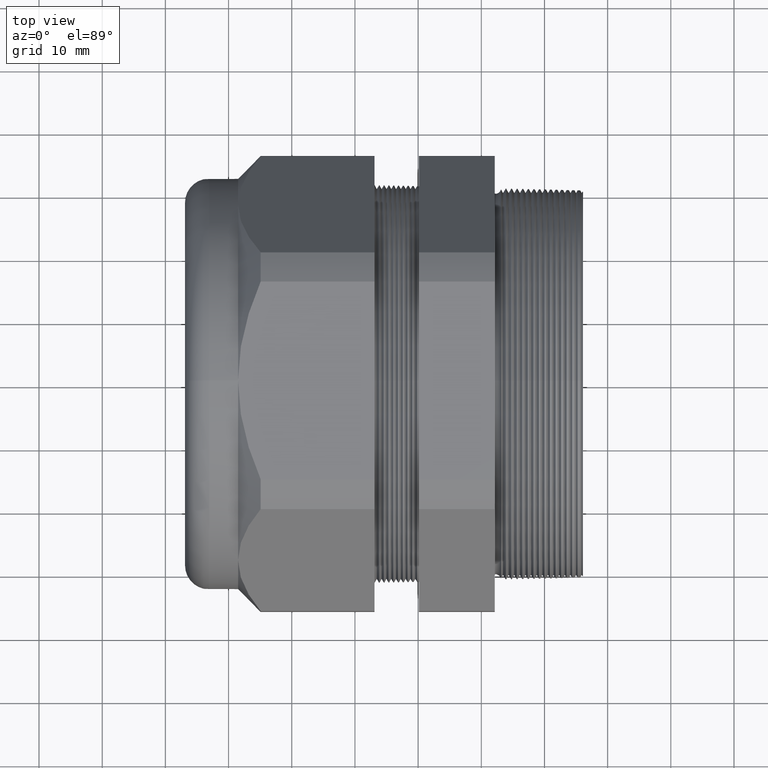
[diagram: clean part render]
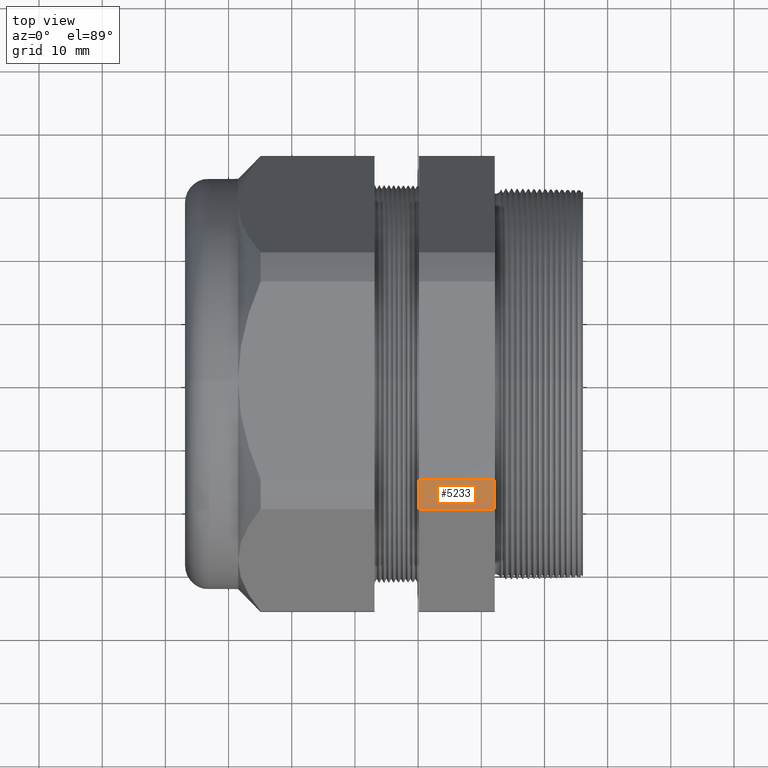
[diagram: same view with one face highlighted and labeled with its STEP entity id]
A machine part, top view. The second image highlights one B-rep face of the part: STEP entity #5233.
In plain terms, the highlighted cylindrical surface (partial cylindrical patch) has radius 36.0883 mm, axis along (-1, 0, 0).
Its self-contained STEP definition (entity closure, byte-faithful):
#2680 = CARTESIAN_POINT ( 'NONE',  ( -0.3100000000000000000, -0.8001812664006662200, 1.174045391329239200 ) ) ;
#2697 = CARTESIAN_POINT ( 'NONE',  ( -0.3100000000000000000, -0.6166625008868306100, 1.279999999999999800 ) ) ;
#2717 = DIRECTION ( 'NONE',  ( 0.0000000000000000000, 0.0000000000000000000, -1.000000000000000000 ) ) ;
#2718 = DIRECTION ( 'NONE',  ( 1.000000000000000000, 0.0000000000000000000, 0.0000000000000000000 ) ) ;
#2719 = CARTESIAN_POINT ( 'NONE',  ( -0.3100000000000000000, 0.0000000000000000000, 0.0000000000000000000 ) ) ;
#2720 = AXIS2_PLACEMENT_3D ( 'NONE', #2719, #2718, #2717 ) ;
#2721 = CIRCLE ( 'NONE', #2720, 1.420799999999999800 ) ;
#3605 = DIRECTION ( 'NONE',  ( -1.000000000000000000, 0.0000000000000000000, 0.0000000000000000000 ) ) ;
#3606 = CARTESIAN_POINT ( 'NONE',  ( -0.7824400000000001400, 0.0000000000000000000, 0.0000000000000000000 ) ) ;
#3607 = AXIS2_PLACEMENT_3D ( 'NONE', #3606, #3605, #3666 ) ;
#3608 = CIRCLE ( 'NONE', #3607, 1.420799999999999800 ) ;
#3618 = DIRECTION ( 'NONE',  ( 0.0000000000000000000, 0.0000000000000000000, 1.000000000000000000 ) ) ;
#3619 = DIRECTION ( 'NONE',  ( -1.000000000000000000, 0.0000000000000000000, 0.0000000000000000000 ) ) ;
#3620 = CARTESIAN_POINT ( 'NONE',  ( 0.2400000000000001900, 0.0000000000000000000, 0.0000000000000000000 ) ) ;
#3621 = AXIS2_PLACEMENT_3D ( 'NONE', #3620, #3619, #3618 ) ;
#3622 = CYLINDRICAL_SURFACE ( 'NONE', #3621, 1.420799999999999800 ) ;
#3627 = FACE_OUTER_BOUND ( 'NONE', #5232, .T. ) ;
#3661 = CARTESIAN_POINT ( 'NONE',  ( -0.7824400000000001400, -0.6166625008868306100, 1.279999999999999800 ) ) ;
#3666 = DIRECTION ( 'NONE',  ( 0.0000000000000000000, 0.0000000000000000000, 1.000000000000000000 ) ) ;
#3679 = DIRECTION ( 'NONE',  ( -1.000000000000000000, 0.0000000000000000000, 0.0000000000000000000 ) ) ;
#3680 = VECTOR ( 'NONE', #3679, 39.37007874015748100 ) ;
#3681 = CARTESIAN_POINT ( 'NONE',  ( 0.2400000000000001900, -0.6166625008868306100, 1.279999999999999800 ) ) ;
#3682 = LINE ( 'NONE', #3681, #3680 ) ;
#3685 = CARTESIAN_POINT ( 'NONE',  ( -0.7824400000000001400, -0.8001812664006662200, 1.174045391329239200 ) ) ;
#3692 = DIRECTION ( 'NONE',  ( -1.000000000000000000, 0.0000000000000000000, 0.0000000000000000000 ) ) ;
#3693 = VECTOR ( 'NONE', #3692, 39.37007874015748100 ) ;
#3694 = CARTESIAN_POINT ( 'NONE',  ( 0.2400000000000001900, -0.8001812664006662200, 1.174045391329239200 ) ) ;
#3695 = LINE ( 'NONE', #3694, #3693 ) ;
#4660 = VERTEX_POINT ( 'NONE', #2697 ) ;
#4675 = VERTEX_POINT ( 'NONE', #2680 ) ;
#4688 = EDGE_CURVE ( 'NONE', #4660, #4675, #2721, .T. ) ;
#5230 = ORIENTED_EDGE ( 'NONE', *, *, #5264, .F. ) ;
#5231 = ORIENTED_EDGE ( 'NONE', *, *, #4688, .F. ) ;
#5232 = EDGE_LOOP ( 'NONE', ( #5230, #5231, #5241, #5245 ) ) ;
#5233 = ADVANCED_FACE ( 'NONE', ( #3627 ), #3622, .T. ) ;
#5241 = ORIENTED_EDGE ( 'NONE', *, *, #5272, .T. ) ;
#5243 = EDGE_CURVE ( 'NONE', #5266, #5248, #3608, .T. ) ;
#5245 = ORIENTED_EDGE ( 'NONE', *, *, #5243, .F. ) ;
#5248 = VERTEX_POINT ( 'NONE', #3661 ) ;
#5264 = EDGE_CURVE ( 'NONE', #4675, #5266, #3695, .T. ) ;
#5266 = VERTEX_POINT ( 'NONE', #3685 ) ;
#5272 = EDGE_CURVE ( 'NONE', #4660, #5248, #3682, .T. ) ;